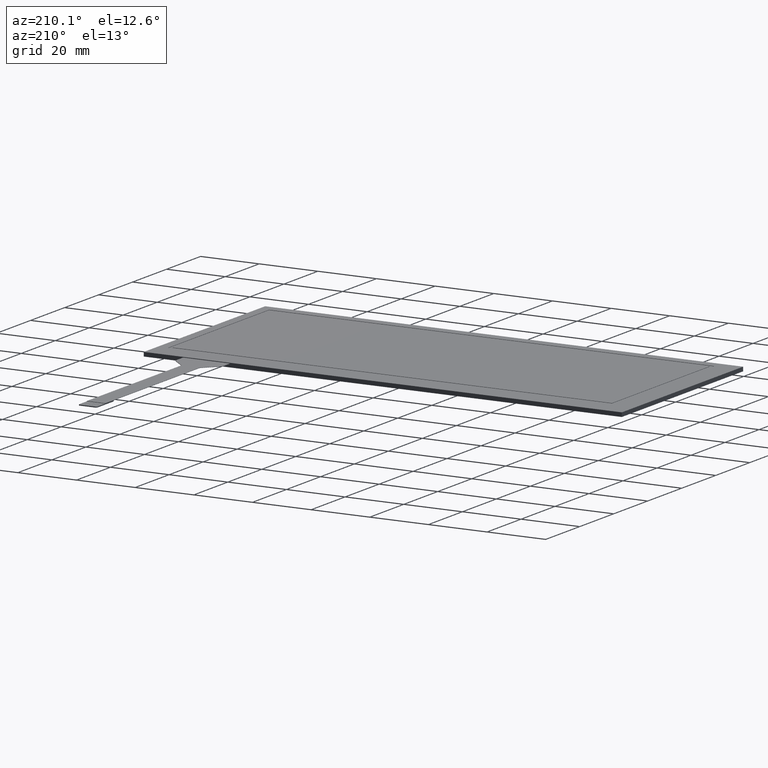
[diagram: clean part render]
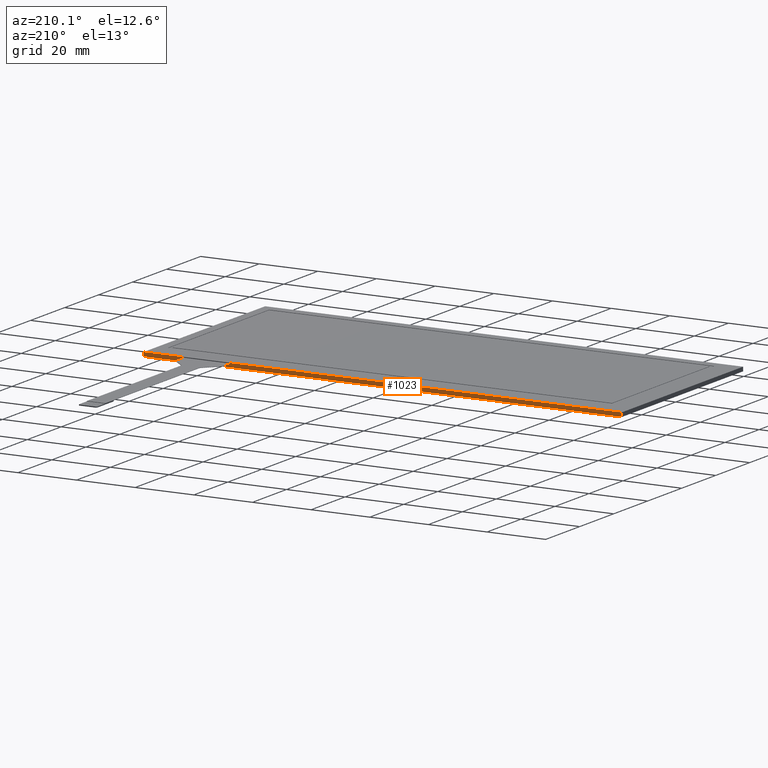
[diagram: same view with one face highlighted and labeled with its STEP entity id]
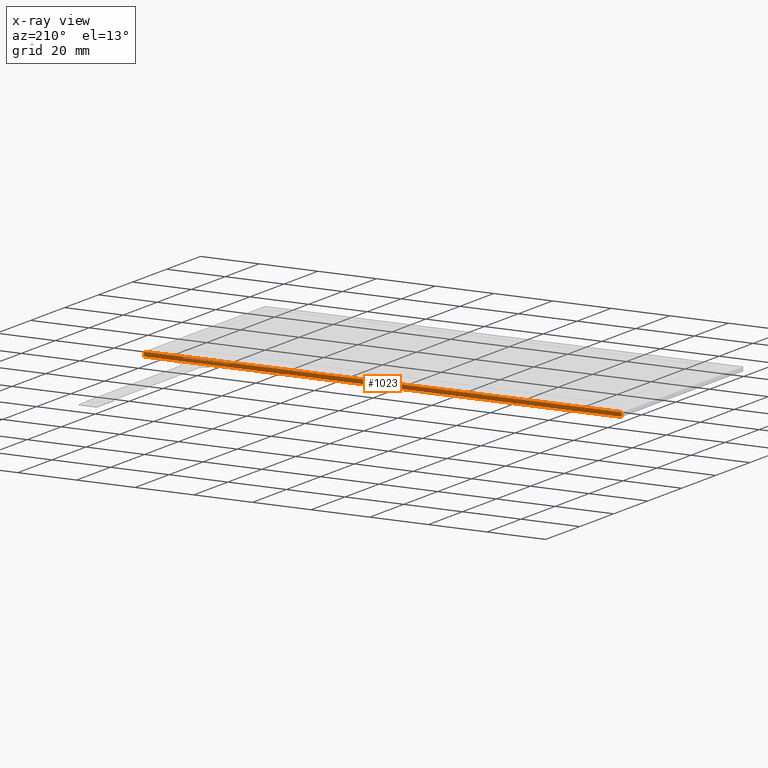
[diagram: x-ray of the same camera — body ghosted, the highlighted face saturated]
A machine part, auxiliary view. The second image highlights one B-rep face of the part: STEP entity #1023.
The next image is the same camera in x-ray: the body ghosted, the highlighted face saturated — about 0% of this face is hidden behind the body in this view.
In plain terms, the highlighted planar face has unit normal (0, 1, 0).
Its self-contained STEP definition (entity closure, byte-faithful):
#48=FACE_BOUND('',#196,.T.);
#91=PLANE('',#1106);
#142=FACE_OUTER_BOUND('',#195,.T.);
#195=EDGE_LOOP('',(#953,#954,#955,#956));
#196=EDGE_LOOP('',(#957,#958,#959,#960));
#230=LINE('',#1442,#356);
#249=LINE('',#1490,#375);
#287=LINE('',#1565,#413);
#288=LINE('',#1568,#414);
#313=LINE('',#1621,#439);
#317=LINE('',#1629,#443);
#323=LINE('',#1640,#449);
#324=LINE('',#1642,#450);
#356=VECTOR('',#1168,10.);
#375=VECTOR('',#1211,10.);
#413=VECTOR('',#1289,10.);
#414=VECTOR('',#1294,10.);
#439=VECTOR('',#1339,10.);
#443=VECTOR('',#1345,10.);
#449=VECTOR('',#1355,10.);
#450=VECTOR('',#1358,10.);
#495=VERTEX_POINT('',#1439);
#496=VERTEX_POINT('',#1441);
#512=VERTEX_POINT('',#1487);
#513=VERTEX_POINT('',#1489);
#547=VERTEX_POINT('',#1619);
#548=VERTEX_POINT('',#1620);
#551=VERTEX_POINT('',#1628);
#554=VERTEX_POINT('',#1638);
#592=EDGE_CURVE('',#496,#495,#230,.T.);
#617=EDGE_CURVE('',#513,#512,#249,.T.);
#655=EDGE_CURVE('',#512,#496,#287,.T.);
#656=EDGE_CURVE('',#495,#513,#288,.T.);
#681=EDGE_CURVE('',#547,#548,#313,.T.);
#685=EDGE_CURVE('',#548,#551,#317,.T.);
#691=EDGE_CURVE('',#547,#554,#323,.T.);
#692=EDGE_CURVE('',#551,#554,#324,.T.);
#953=ORIENTED_EDGE('',*,*,#681,.F.);
#954=ORIENTED_EDGE('',*,*,#691,.T.);
#955=ORIENTED_EDGE('',*,*,#692,.F.);
#956=ORIENTED_EDGE('',*,*,#685,.F.);
#957=ORIENTED_EDGE('',*,*,#656,.T.);
#958=ORIENTED_EDGE('',*,*,#617,.T.);
#959=ORIENTED_EDGE('',*,*,#655,.T.);
#960=ORIENTED_EDGE('',*,*,#592,.T.);
#1023=ADVANCED_FACE('',(#142,#48),#91,.T.);
#1106=AXIS2_PLACEMENT_3D('',#1641,#1356,#1357);
#1168=DIRECTION('',(-1.,0.,0.));
#1211=DIRECTION('',(1.,0.,0.));
#1289=DIRECTION('',(0.,0.,1.));
#1294=DIRECTION('',(0.,0.,-1.));
#1339=DIRECTION('',(-1.,0.,0.));
#1345=DIRECTION('',(0.,0.,-1.));
#1355=DIRECTION('',(0.,0.,-1.));
#1356=DIRECTION('center_axis',(0.,1.,0.));
#1357=DIRECTION('ref_axis',(1.,0.,0.));
#1358=DIRECTION('',(1.,0.,0.));
#1439=CARTESIAN_POINT('',(49.9,38.1,-0.2));
#1441=CARTESIAN_POINT('',(65.9,38.1,-0.2));
#1442=CARTESIAN_POINT('',(-12.9,38.1,-0.2));
#1487=CARTESIAN_POINT('',(65.9,38.1,-0.3));
#1489=CARTESIAN_POINT('',(49.9,38.1,-0.3));
#1490=CARTESIAN_POINT('',(-12.9,38.1,-0.3));
#1565=CARTESIAN_POINT('',(65.9,38.1,-0.1));
#1568=CARTESIAN_POINT('',(49.9,38.1,-0.1));
#1619=CARTESIAN_POINT('',(79.3,38.1,0.));
#1620=CARTESIAN_POINT('',(-83.7,38.1,0.));
#1621=CARTESIAN_POINT('',(79.3,38.1,0.));
#1628=CARTESIAN_POINT('',(-83.7,38.1,-1.4));
#1629=CARTESIAN_POINT('',(-83.7,38.1,0.));
#1638=CARTESIAN_POINT('',(79.3,38.1,-1.4));
#1640=CARTESIAN_POINT('',(79.3,38.1,0.));
#1641=CARTESIAN_POINT('Origin',(-83.7,38.1,0.));
#1642=CARTESIAN_POINT('',(79.3,38.1,-1.4));